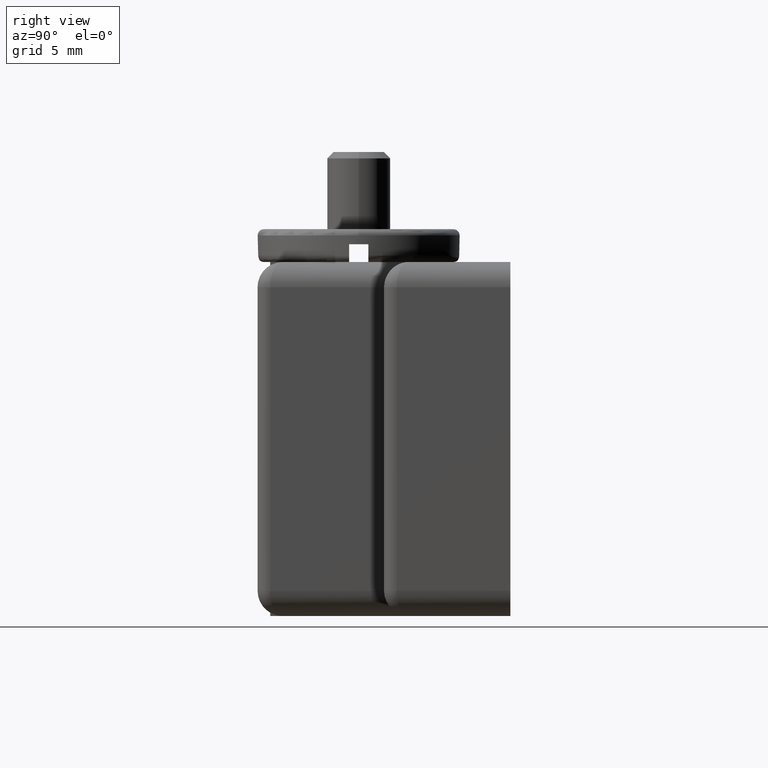
[diagram: clean part render]
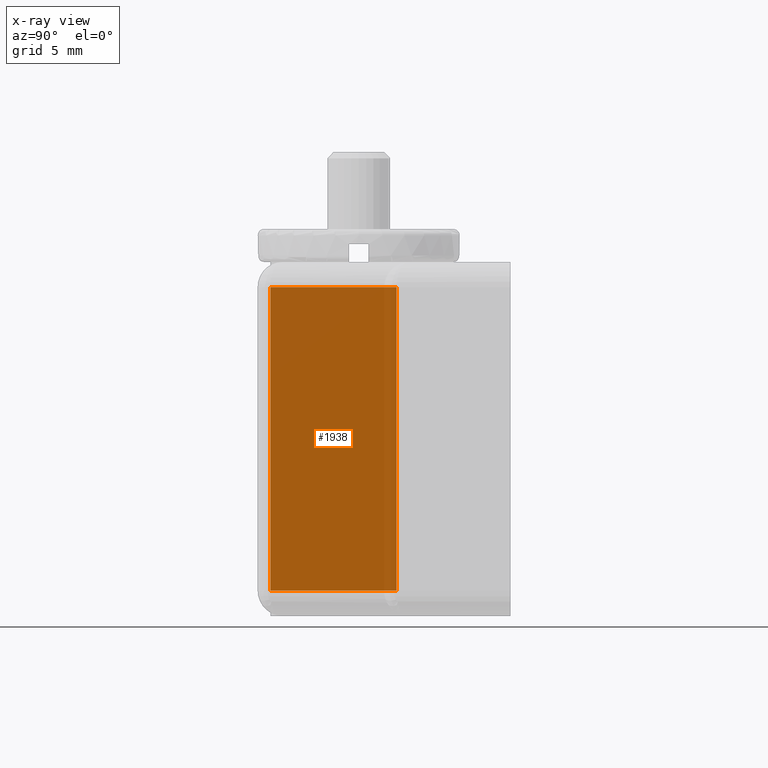
[diagram: x-ray — body ghosted, one internal face saturated and labeled with its STEP entity id]
A machine part, right view, then the same camera in x-ray: the body is ghosted and one INTERNAL B-rep face — a face not visible from any outside direction — is saturated and labeled: STEP entity #1938.
In plain terms, the highlighted planar face has unit normal (1, 0, -0).
Its self-contained STEP definition (entity closure, byte-faithful):
#226=FACE_OUTER_BOUND('',#351,.T.);
#351=EDGE_LOOP('',(#1579,#1580,#1581,#1582));
#524=LINE('',#4168,#720);
#527=LINE('',#4174,#723);
#530=LINE('',#4184,#726);
#531=LINE('',#4185,#727);
#720=VECTOR('',#2488,9.99999778104732);
#723=VECTOR('',#2495,23.9999937796902);
#726=VECTOR('',#2504,9.9999977808275);
#727=VECTOR('',#2505,23.999993783888);
#843=VERTEX_POINT('',#2835);
#868=VERTEX_POINT('',#3000);
#924=VERTEX_POINT('',#4166);
#925=VERTEX_POINT('',#4172);
#1154=EDGE_CURVE('',#924,#843,#524,.T.);
#1157=EDGE_CURVE('',#925,#924,#527,.T.);
#1162=EDGE_CURVE('',#925,#868,#530,.T.);
#1163=EDGE_CURVE('',#843,#868,#531,.T.);
#1579=ORIENTED_EDGE('',*,*,#1157,.F.);
#1580=ORIENTED_EDGE('',*,*,#1162,.T.);
#1581=ORIENTED_EDGE('',*,*,#1163,.F.);
#1582=ORIENTED_EDGE('',*,*,#1154,.F.);
#1835=PLANE('',#2105);
#1938=ADVANCED_FACE('',(#226),#1835,.T.);
#2105=AXIS2_PLACEMENT_3D('',#4183,#2502,#2503);
#2488=DIRECTION('',(0.,0.,1.));
#2495=DIRECTION('',(0.,-1.,0.));
#2502=DIRECTION('center_axis',(1.,0.,0.));
#2503=DIRECTION('ref_axis',(0.,0.,-1.));
#2504=DIRECTION('',(0.,0.,1.));
#2505=DIRECTION('',(0.,1.,0.));
#2835=CARTESIAN_POINT('',(-27.4999934508819,-11.999996891944,18.9999955607874));
#3000=CARTESIAN_POINT('',(-27.4999934508819,11.999996891944,18.9999955607874));
#4166=CARTESIAN_POINT('',(-27.499993450772,-11.9999968877462,8.99999777974009));
#4168=CARTESIAN_POINT('',(-27.4999934508819,-11.999996891944,8.99996896737598));
#4172=CARTESIAN_POINT('',(-27.4999934508819,11.999996891944,8.99999777995991));
#4174=CARTESIAN_POINT('',(-27.4999934508819,11.999996891944,8.99999777995991));
#4183=CARTESIAN_POINT('Origin',(-27.4999934508819,-13.999996891944,18.9999957819242));
#4184=CARTESIAN_POINT('',(-27.4999934508819,11.999996891944,8.99999777995991));
#4185=CARTESIAN_POINT('',(-27.4999934508819,-11.999996891944,18.9999955599202));